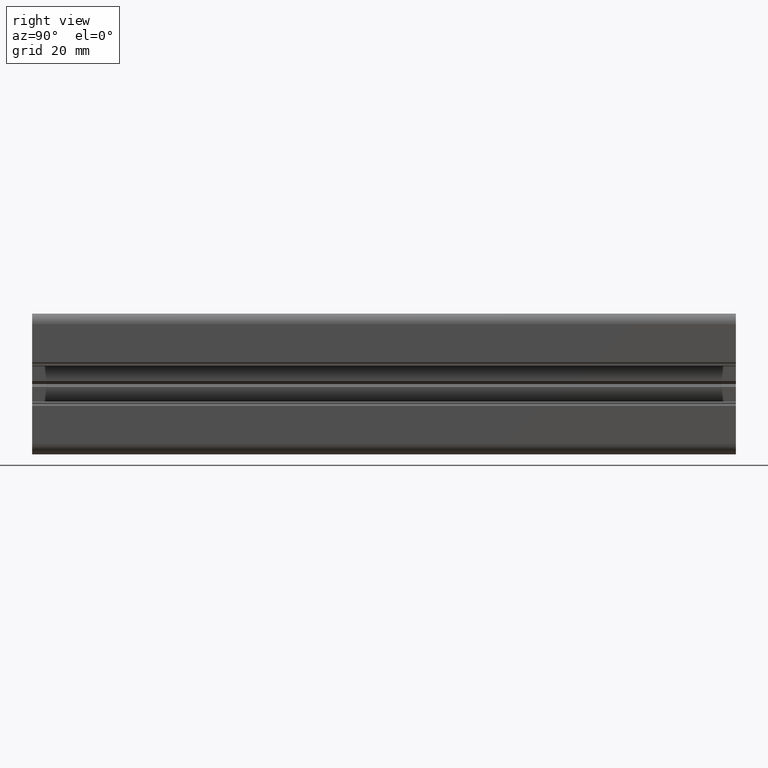
[diagram: clean part render]
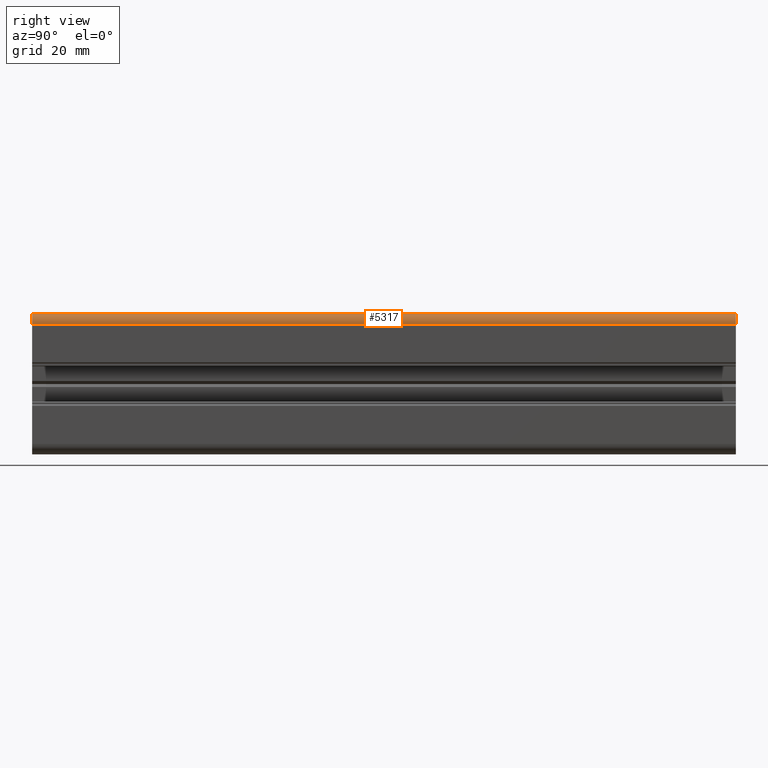
[diagram: same view with one face highlighted and labeled with its STEP entity id]
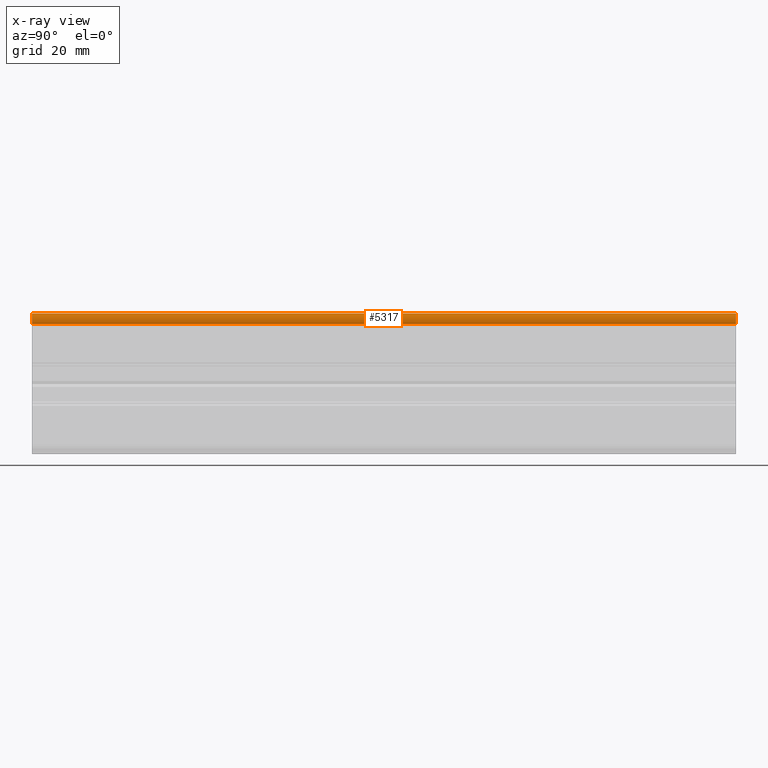
[diagram: x-ray of the same camera — body ghosted, the highlighted face saturated]
A machine part, right view. The second image highlights one B-rep face of the part: STEP entity #5317.
The next image is the same camera in x-ray: the body ghosted, the highlighted face saturated — about 0% of this face is hidden behind the body in this view.
In plain terms, the highlighted cylindrical surface (edge-blend (fillet) strip) has radius 3 mm, axis along (0, 1, 0).
Its self-contained STEP definition (entity closure, byte-faithful):
#466 = AXIS2_PLACEMENT_3D ( 'NONE', #4423, #3610, #2275 ) ;
#763 = EDGE_CURVE ( 'NONE', #3786, #4274, #5234, .T. ) ;
#1544 = CARTESIAN_POINT ( 'NONE',  ( 20.00000000000000000, 0.0000000000000000000, 16.99999999999848300 ) ) ;
#1596 = CARTESIAN_POINT ( 'NONE',  ( 16.99999999999900200, 0.0000000000000000000, 16.99999999999860000 ) ) ;
#1599 = CYLINDRICAL_SURFACE ( 'NONE', #4310, 3.000000000001001900 ) ;
#1924 = CARTESIAN_POINT ( 'NONE',  ( 20.00000000000000000, 0.0000000000000000000, 16.99999999999850100 ) ) ;
#1963 = VERTEX_POINT ( 'NONE', #2761 ) ;
#2023 = ORIENTED_EDGE ( 'NONE', *, *, #3757, .F. ) ;
#2044 = DIRECTION ( 'NONE',  ( 0.0000000000000000000, 0.0000000000000000000, 1.000000000000000000 ) ) ;
#2045 = EDGE_CURVE ( 'NONE', #5050, #1963, #5088, .T. ) ;
#2064 = DIRECTION ( 'NONE',  ( 0.0000000000000000000, 0.0000000000000000000, 1.000000000000000000 ) ) ;
#2275 = DIRECTION ( 'NONE',  ( 0.0000000000000000000, 0.0000000000000000000, 1.000000000000000000 ) ) ;
#2282 = ORIENTED_EDGE ( 'NONE', *, *, #2045, .T. ) ;
#2370 = ORIENTED_EDGE ( 'NONE', *, *, #763, .F. ) ;
#2670 = EDGE_LOOP ( 'NONE', ( #3436, #2370, #2023, #2282 ) ) ;
#2761 = CARTESIAN_POINT ( 'NONE',  ( 16.99999999999900200, 0.0000000000000000000, 19.99999999999954900 ) ) ;
#3186 = CARTESIAN_POINT ( 'NONE',  ( 16.99999999999900200, 200.0000000000000000, 19.99999999999955200 ) ) ;
#3405 = DIRECTION ( 'NONE',  ( 0.0000000000000000000, 1.000000000000000000, 0.0000000000000000000 ) ) ;
#3436 = ORIENTED_EDGE ( 'NONE', *, *, #4475, .T. ) ;
#3610 = DIRECTION ( 'NONE',  ( 0.0000000000000000000, 1.000000000000000000, 0.0000000000000000000 ) ) ;
#3676 = CARTESIAN_POINT ( 'NONE',  ( 16.99999999999900200, 0.0000000000000000000, 19.99999999999960200 ) ) ;
#3757 = EDGE_CURVE ( 'NONE', #5050, #3786, #5030, .T. ) ;
#3786 = VERTEX_POINT ( 'NONE', #3847 ) ;
#3847 = CARTESIAN_POINT ( 'NONE',  ( 20.00000000000000000, 200.0000000000000000, 16.99999999999855000 ) ) ;
#3861 = CIRCLE ( 'NONE', #466, 3.000000000001001900 ) ;
#4068 = AXIS2_PLACEMENT_3D ( 'NONE', #5144, #3405, #2064 ) ;
#4098 = VECTOR ( 'NONE', #4960, 1000.000000000000000 ) ;
#4274 = VERTEX_POINT ( 'NONE', #1544 ) ;
#4310 = AXIS2_PLACEMENT_3D ( 'NONE', #1596, #4652, #2044 ) ;
#4316 = FACE_OUTER_BOUND ( 'NONE', #2670, .T. ) ;
#4333 = VECTOR ( 'NONE', #4967, 1000.000000000000000 ) ;
#4423 = CARTESIAN_POINT ( 'NONE',  ( 16.99999999999900200, 0.0000000000000000000, 16.99999999999860000 ) ) ;
#4475 = EDGE_CURVE ( 'NONE', #1963, #4274, #3861, .T. ) ;
#4652 = DIRECTION ( 'NONE',  ( 0.0000000000000000000, 1.000000000000000000, 0.0000000000000000000 ) ) ;
#4960 = DIRECTION ( 'NONE',  ( -0.0000000000000000000, -1.000000000000000000, -0.0000000000000000000 ) ) ;
#4967 = DIRECTION ( 'NONE',  ( -0.0000000000000000000, -1.000000000000000000, -0.0000000000000000000 ) ) ;
#5030 = CIRCLE ( 'NONE', #4068, 3.000000000001001900 ) ;
#5050 = VERTEX_POINT ( 'NONE', #3186 ) ;
#5088 = LINE ( 'NONE', #3676, #4333 ) ;
#5144 = CARTESIAN_POINT ( 'NONE',  ( 16.99999999999900200, 200.0000000000000000, 16.99999999999860000 ) ) ;
#5234 = LINE ( 'NONE', #1924, #4098 ) ;
#5317 = ADVANCED_FACE ( 'NONE', ( #4316 ), #1599, .T. ) ;